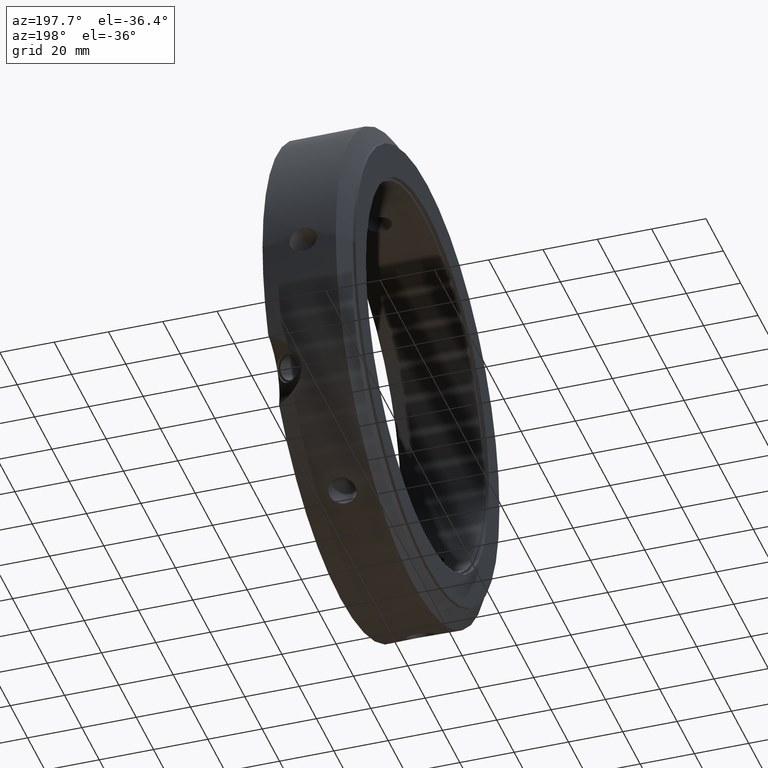
[diagram: clean part render]
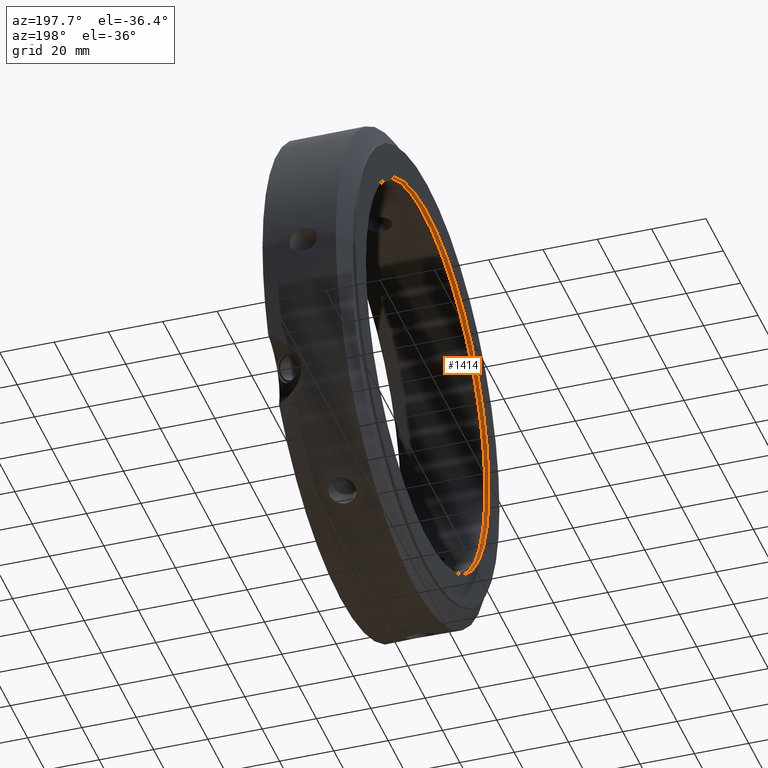
[diagram: same view with one face highlighted and labeled with its STEP entity id]
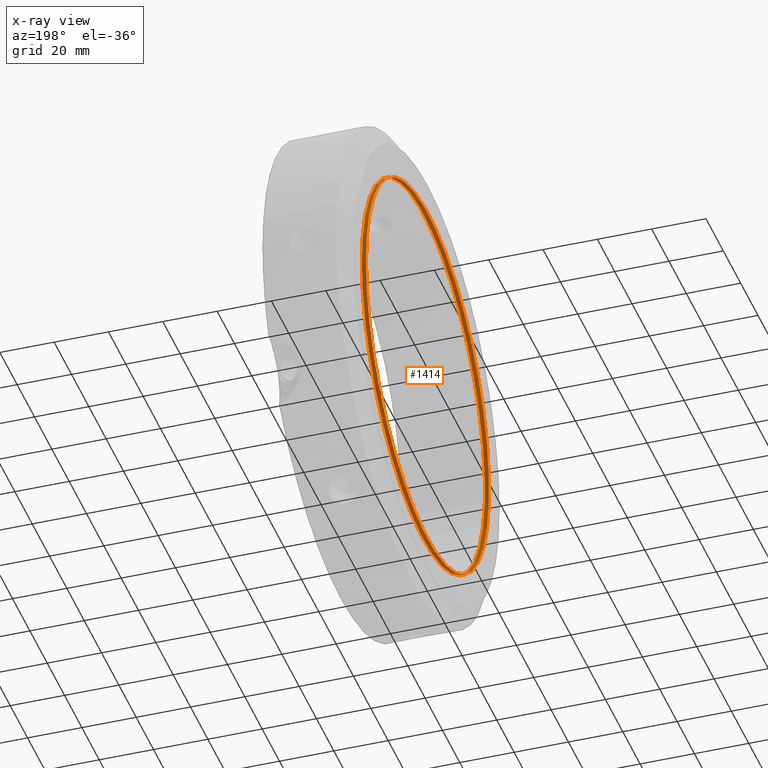
[diagram: x-ray of the same camera — body ghosted, the highlighted face saturated]
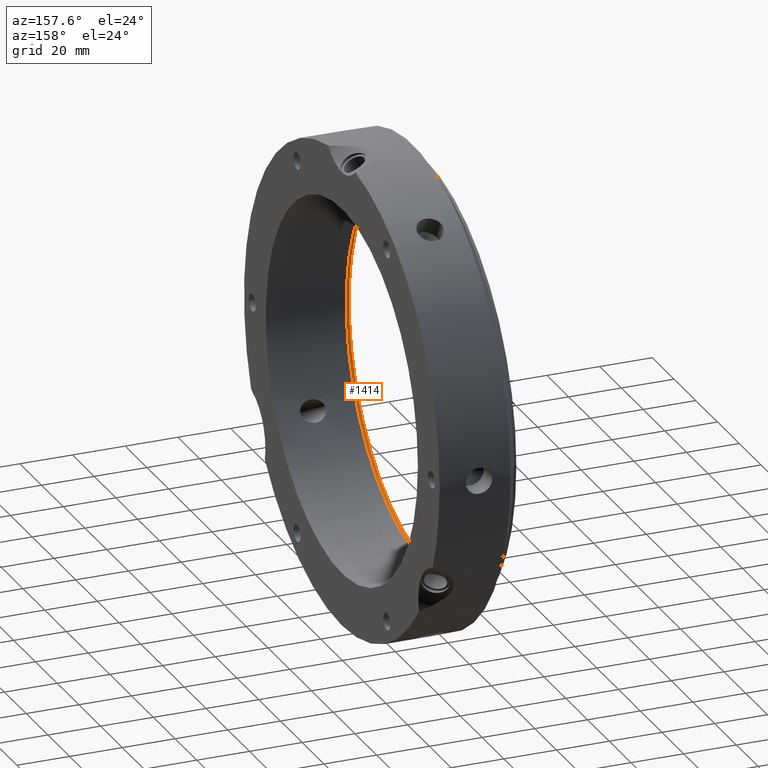
[diagram: same view with one face highlighted and labeled with its STEP entity id]
A machine part, auxiliary view. The second image highlights one B-rep face of the part: STEP entity #1414.
The next image is the same camera in x-ray: the body ghosted, the highlighted face saturated — about 0% of this face is hidden behind the body in this view.
A second angle (auxiliary view) of the same face is appended — the face is thin or edge-on in the first view.
In plain terms, the highlighted cylindrical surface (bore or boss wall) has radius 71 mm, axis along (1, 0, 0).
Its self-contained STEP definition (entity closure, byte-faithful):
#1372=CARTESIAN_POINT('',(1.499999999999979,71.0,0.0));
#1373=VERTEX_POINT('',#1372);
#1374=CARTESIAN_POINT('',(1.499999999999979,0.0,0.0));
#1375=DIRECTION('',(1.0,0.0,0.0));
#1376=DIRECTION('',(0.0,1.0,0.0));
#1377=AXIS2_PLACEMENT_3D('',#1374,#1375,#1376);
#1378=CIRCLE('',#1377,71.0);
#1379=EDGE_CURVE('',#1373,#1373,#1378,.T.);
#1395=CARTESIAN_POINT('',(0.749999999999979,0.0,0.0));
#1396=DIRECTION('',(1.0,0.0,0.0));
#1397=DIRECTION('',(0.0,1.0,0.0));
#1398=AXIS2_PLACEMENT_3D('',#1395,#1396,#1397);
#1399=CYLINDRICAL_SURFACE('',#1398,71.0);
#1400=CARTESIAN_POINT('',(-2.081668E-014,71.0,0.0));
#1401=VERTEX_POINT('',#1400);
#1402=CARTESIAN_POINT('',(-2.081668E-014,0.0,0.0));
#1403=DIRECTION('',(1.0,0.0,0.0));
#1404=DIRECTION('',(0.0,1.0,0.0));
#1405=AXIS2_PLACEMENT_3D('',#1402,#1403,#1404);
#1406=CIRCLE('',#1405,71.0);
#1407=EDGE_CURVE('',#1401,#1401,#1406,.T.);
#1408=ORIENTED_EDGE('',*,*,#1407,.F.);
#1409=EDGE_LOOP('',(#1408));
#1410=FACE_OUTER_BOUND('',#1409,.T.);
#1411=ORIENTED_EDGE('',*,*,#1379,.T.);
#1412=EDGE_LOOP('',(#1411));
#1413=FACE_BOUND('',#1412,.T.);
#1414=ADVANCED_FACE('',(#1410,#1413),#1399,.F.);